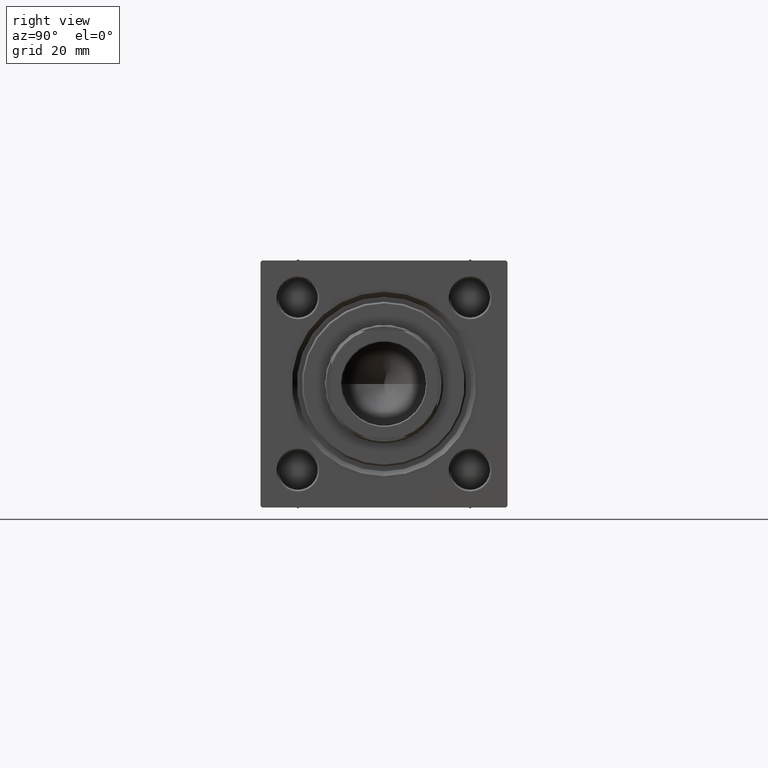
[diagram: clean part render]
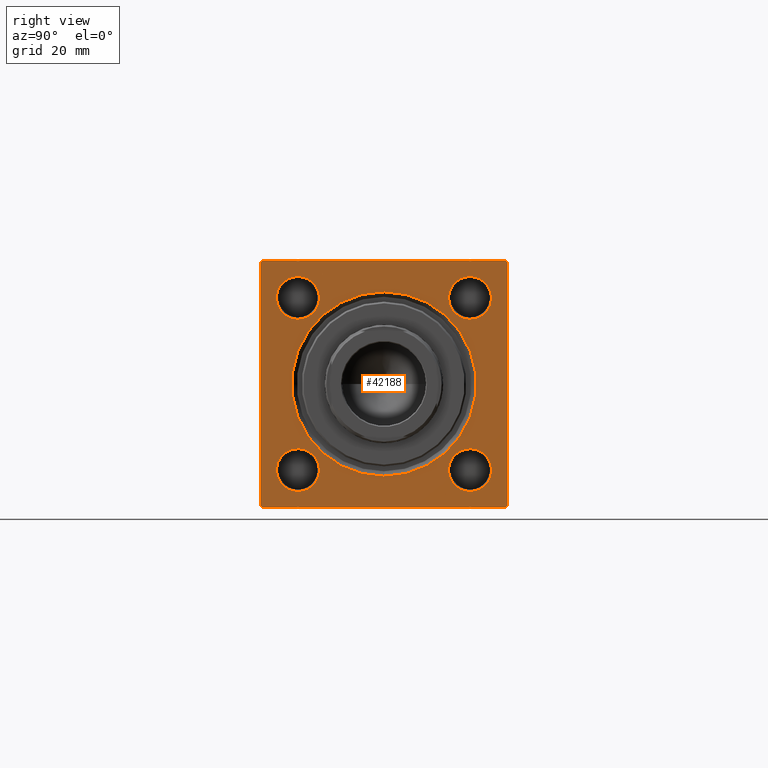
[diagram: same view with one face highlighted and labeled with its STEP entity id]
A machine part, right view. The second image highlights one B-rep face of the part: STEP entity #42188.
In plain terms, the highlighted planar face has unit normal (-1, 0, 0).
Its self-contained STEP definition (entity closure, byte-faithful):
#86 = AXIS2_PLACEMENT_3D ( 'NONE', #1827, #13035, #33537 ) ;
#119 = VERTEX_POINT ( 'NONE', #745 ) ;
#745 = CARTESIAN_POINT ( 'NONE',  ( 154.0000000000000000, 26.14999999999999858, 19.64999999999999503 ) ) ;
#986 = ORIENTED_EDGE ( 'NONE', *, *, #2854, .T. ) ;
#1223 = VERTEX_POINT ( 'NONE', #22635 ) ;
#1317 = DIRECTION ( 'NONE',  ( 0.000000000000000000, 0.000000000000000000, 1.000000000000000000 ) ) ;
#1333 = CARTESIAN_POINT ( 'NONE',  ( 154.0000000000000000, 0.000000000000000000, 0.000000000000000000 ) ) ;
#1701 = AXIS2_PLACEMENT_3D ( 'NONE', #35091, #16080, #42960 ) ;
#1739 = VERTEX_POINT ( 'NONE', #29761 ) ;
#1814 = VERTEX_POINT ( 'NONE', #48777 ) ;
#1827 = CARTESIAN_POINT ( 'NONE',  ( 154.0000000000000000, 26.14999999999999858, 26.15000000000000213 ) ) ;
#2177 = DIRECTION ( 'NONE',  ( 0.000000000000000000, 0.000000000000000000, 1.000000000000000000 ) ) ;
#2854 = EDGE_CURVE ( 'NONE', #4238, #49721, #17377, .T. ) ;
#3809 = DIRECTION ( 'NONE',  ( 0.000000000000000000, 0.000000000000000000, 1.000000000000000000 ) ) ;
#3873 = DIRECTION ( 'NONE',  ( -1.000000000000000000, -0.000000000000000000, 0.000000000000000000 ) ) ;
#3919 = ORIENTED_EDGE ( 'NONE', *, *, #16750, .T. ) ;
#4052 = EDGE_CURVE ( 'NONE', #40259, #22416, #41417, .T. ) ;
#4238 = VERTEX_POINT ( 'NONE', #41377 ) ;
#4481 = VERTEX_POINT ( 'NONE', #50075 ) ;
#4761 = EDGE_CURVE ( 'NONE', #1739, #119, #35747, .T. ) ;
#4784 = DIRECTION ( 'NONE',  ( 0.000000000000000000, -1.000000000000000000, -1.850371707708594316E-16 ) ) ;
#4812 = CARTESIAN_POINT ( 'NONE',  ( 154.0000000000000000, 37.50000000000000000, -37.50000000000000000 ) ) ;
#5258 = EDGE_CURVE ( 'NONE', #49721, #33942, #40542, .T. ) ;
#5439 = CARTESIAN_POINT ( 'NONE',  ( 154.0000000000000000, -37.50000000000000000, 37.49999999999997868 ) ) ;
#6591 = AXIS2_PLACEMENT_3D ( 'NONE', #34225, #14711, #10398 ) ;
#7886 = LINE ( 'NONE', #35520, #43536 ) ;
#8889 = EDGE_LOOP ( 'NONE', ( #15349, #49926 ) ) ;
#9632 = ORIENTED_EDGE ( 'NONE', *, *, #28681, .T. ) ;
#10398 = DIRECTION ( 'NONE',  ( 0.000000000000000000, 0.000000000000000000, 1.000000000000000000 ) ) ;
#10812 = VECTOR ( 'NONE', #36541, 1000.000000000000114 ) ;
#10848 = DIRECTION ( 'NONE',  ( -1.000000000000000000, -0.000000000000000000, 0.000000000000000000 ) ) ;
#11150 = CIRCLE ( 'NONE', #47620, 27.99999999999999645 ) ;
#11468 = CIRCLE ( 'NONE', #1701, 6.500000000000002665 ) ;
#11648 = AXIS2_PLACEMENT_3D ( 'NONE', #44604, #10848, #22285 ) ;
#12110 = ORIENTED_EDGE ( 'NONE', *, *, #4761, .T. ) ;
#13035 = DIRECTION ( 'NONE',  ( -1.000000000000000000, -0.000000000000000000, 0.000000000000000000 ) ) ;
#13043 = DIRECTION ( 'NONE',  ( -1.000000000000000000, -0.000000000000000000, 0.000000000000000000 ) ) ;
#13076 = DIRECTION ( 'NONE',  ( 0.000000000000000000, 0.000000000000000000, -1.000000000000000000 ) ) ;
#13505 = ORIENTED_EDGE ( 'NONE', *, *, #28006, .F. ) ;
#13524 = DIRECTION ( 'NONE',  ( -1.000000000000000000, -0.000000000000000000, 0.000000000000000000 ) ) ;
#13655 = CIRCLE ( 'NONE', #19316, 6.500000000000002665 ) ;
#14531 = EDGE_LOOP ( 'NONE', ( #28352, #12110 ) ) ;
#14570 = CARTESIAN_POINT ( 'NONE',  ( 154.0000000000000000, -26.15000000000000213, -32.64999999999998437 ) ) ;
#14711 = DIRECTION ( 'NONE',  ( -1.000000000000000000, -0.000000000000000000, 0.000000000000000000 ) ) ;
#14790 = ORIENTED_EDGE ( 'NONE', *, *, #23486, .T. ) ;
#14969 = FACE_BOUND ( 'NONE', #14531, .T. ) ;
#15193 = ORIENTED_EDGE ( 'NONE', *, *, #40896, .T. ) ;
#15349 = ORIENTED_EDGE ( 'NONE', *, *, #27125, .T. ) ;
#16080 = DIRECTION ( 'NONE',  ( -1.000000000000000000, -0.000000000000000000, 0.000000000000000000 ) ) ;
#16376 = EDGE_CURVE ( 'NONE', #49837, #4481, #41663, .T. ) ;
#16476 = DIRECTION ( 'NONE',  ( 0.000000000000000000, 0.7071067811865671127, -0.7071067811865279218 ) ) ;
#16750 = EDGE_CURVE ( 'NONE', #23470, #19308, #24100, .T. ) ;
#17377 = LINE ( 'NONE', #5439, #34875 ) ;
#17423 = ORIENTED_EDGE ( 'NONE', *, *, #5258, .T. ) ;
#17689 = EDGE_LOOP ( 'NONE', ( #40186, #35062 ) ) ;
#18032 = ORIENTED_EDGE ( 'NONE', *, *, #28877, .F. ) ;
#18523 = FACE_BOUND ( 'NONE', #26665, .T. ) ;
#18934 = LINE ( 'NONE', #30087, #29154 ) ;
#19032 = FACE_BOUND ( 'NONE', #41862, .T. ) ;
#19308 = VERTEX_POINT ( 'NONE', #22939 ) ;
#19316 = AXIS2_PLACEMENT_3D ( 'NONE', #22503, #41246, #2177 ) ;
#19772 = EDGE_CURVE ( 'NONE', #119, #1739, #26445, .T. ) ;
#19829 = AXIS2_PLACEMENT_3D ( 'NONE', #1333, #13043, #42725 ) ;
#20367 = DIRECTION ( 'NONE',  ( 0.000000000000000000, 0.000000000000000000, 1.000000000000000000 ) ) ;
#20695 = DIRECTION ( 'NONE',  ( 0.000000000000000000, -9.251858538542972814E-17, -1.000000000000000000 ) ) ;
#20830 = DIRECTION ( 'NONE',  ( -1.000000000000000000, -0.000000000000000000, 0.000000000000000000 ) ) ;
#21099 = LINE ( 'NONE', #40601, #10812 ) ;
#21325 = ORIENTED_EDGE ( 'NONE', *, *, #32341, .T. ) ;
#21437 = EDGE_CURVE ( 'NONE', #1814, #34853, #37782, .T. ) ;
#21673 = AXIS2_PLACEMENT_3D ( 'NONE', #31773, #39626, #20367 ) ;
#21703 = VECTOR ( 'NONE', #42372, 1000.000000000000000 ) ;
#22285 = DIRECTION ( 'NONE',  ( 0.000000000000000000, 0.000000000000000000, 1.000000000000000000 ) ) ;
#22416 = VERTEX_POINT ( 'NONE', #37377 ) ;
#22493 = DIRECTION ( 'NONE',  ( -0.000000000000000000, 0.7071067811865425767, 0.7071067811865525687 ) ) ;
#22503 = CARTESIAN_POINT ( 'NONE',  ( 154.0000000000000000, -26.14999999999999147, 26.14999999999999503 ) ) ;
#22635 = CARTESIAN_POINT ( 'NONE',  ( 154.0000000000000000, -26.14999999999999147, 19.64999999999999503 ) ) ;
#22804 = AXIS2_PLACEMENT_3D ( 'NONE', #47255, #3873, #31291 ) ;
#22939 = CARTESIAN_POINT ( 'NONE',  ( 154.0000000000000000, -36.99999999999997158, 37.49999999999997868 ) ) ;
#23136 = DIRECTION ( 'NONE',  ( -1.000000000000000000, -0.000000000000000000, 0.000000000000000000 ) ) ;
#23470 = VERTEX_POINT ( 'NONE', #47765 ) ;
#23486 = EDGE_CURVE ( 'NONE', #4481, #49837, #11150, .T. ) ;
#24100 = LINE ( 'NONE', #36486, #43361 ) ;
#24934 = CIRCLE ( 'NONE', #21673, 6.499999999999974243 ) ;
#25505 = VERTEX_POINT ( 'NONE', #25564 ) ;
#25564 = CARTESIAN_POINT ( 'NONE',  ( 154.0000000000000000, 37.50000000000000000, -36.99999999999999289 ) ) ;
#25883 = CARTESIAN_POINT ( 'NONE',  ( 154.0000000000000000, 37.00000000000000000, -37.50000000000000000 ) ) ;
#26445 = CIRCLE ( 'NONE', #45882, 6.500000000000008882 ) ;
#26665 = EDGE_LOOP ( 'NONE', ( #9632, #15193 ) ) ;
#26918 = ORIENTED_EDGE ( 'NONE', *, *, #27045, .T. ) ;
#26969 = VERTEX_POINT ( 'NONE', #30725 ) ;
#27045 = EDGE_CURVE ( 'NONE', #26969, #23470, #7886, .T. ) ;
#27125 = EDGE_CURVE ( 'NONE', #34853, #1814, #24934, .T. ) ;
#27903 = CARTESIAN_POINT ( 'NONE',  ( 154.0000000000000000, -36.99999999999998579, -37.50000000000000000 ) ) ;
#28006 = EDGE_CURVE ( 'NONE', #30071, #33942, #34764, .T. ) ;
#28058 = VERTEX_POINT ( 'NONE', #46932 ) ;
#28309 = CARTESIAN_POINT ( 'NONE',  ( 154.0000000000000000, 37.50000000000000000, 37.49999999999999289 ) ) ;
#28352 = ORIENTED_EDGE ( 'NONE', *, *, #19772, .T. ) ;
#28681 = EDGE_CURVE ( 'NONE', #1223, #28058, #13655, .T. ) ;
#28877 = EDGE_CURVE ( 'NONE', #26969, #25505, #36391, .T. ) ;
#29154 = VECTOR ( 'NONE', #22493, 999.9999999999998863 ) ;
#29761 = CARTESIAN_POINT ( 'NONE',  ( 154.0000000000000000, 26.14999999999999858, 32.65000000000001279 ) ) ;
#30071 = VERTEX_POINT ( 'NONE', #25883 ) ;
#30087 = CARTESIAN_POINT ( 'NONE',  ( 154.0000000000000000, 37.50000000000000000, -36.99999999999999289 ) ) ;
#30725 = CARTESIAN_POINT ( 'NONE',  ( 154.0000000000000000, 37.50000000000000000, 36.99999999999999289 ) ) ;
#31291 = DIRECTION ( 'NONE',  ( 0.000000000000000000, 0.000000000000000000, 1.000000000000000000 ) ) ;
#31773 = CARTESIAN_POINT ( 'NONE',  ( 154.0000000000000000, 26.14999999999999858, -26.15000000000000213 ) ) ;
#32341 = EDGE_CURVE ( 'NONE', #30071, #25505, #18934, .T. ) ;
#33508 = CIRCLE ( 'NONE', #11648, 6.499999999999974243 ) ;
#33537 = DIRECTION ( 'NONE',  ( 0.000000000000000000, 0.000000000000000000, 1.000000000000000000 ) ) ;
#33942 = VERTEX_POINT ( 'NONE', #43861 ) ;
#34225 = CARTESIAN_POINT ( 'NONE',  ( 154.0000000000000000, 0.000000000000000000, 0.000000000000000000 ) ) ;
#34764 = LINE ( 'NONE', #4812, #21703 ) ;
#34853 = VERTEX_POINT ( 'NONE', #37971 ) ;
#34875 = VECTOR ( 'NONE', #20695, 1000.000000000000000 ) ;
#35062 = ORIENTED_EDGE ( 'NONE', *, *, #47007, .T. ) ;
#35091 = CARTESIAN_POINT ( 'NONE',  ( 154.0000000000000000, -26.14999999999999147, 26.14999999999999503 ) ) ;
#35520 = CARTESIAN_POINT ( 'NONE',  ( 154.0000000000000000, 37.00000000000000000, 37.49999999999999289 ) ) ;
#35747 = CIRCLE ( 'NONE', #86, 6.500000000000008882 ) ;
#35770 = CARTESIAN_POINT ( 'NONE',  ( 154.0000000000000000, 26.14999999999999858, 26.15000000000000213 ) ) ;
#36391 = LINE ( 'NONE', #28309, #46849 ) ;
#36486 = CARTESIAN_POINT ( 'NONE',  ( 154.0000000000000000, 37.50000000000000000, 37.49999999999999289 ) ) ;
#36541 = DIRECTION ( 'NONE',  ( -0.000000000000000000, -0.7071067811865474617, -0.7071067811865474617 ) ) ;
#36587 = CARTESIAN_POINT ( 'NONE',  ( 154.0000000000000000, 0.000000000000000000, 0.000000000000000000 ) ) ;
#37377 = CARTESIAN_POINT ( 'NONE',  ( 154.0000000000000000, -26.15000000000000213, -19.65000000000002345 ) ) ;
#37782 = CIRCLE ( 'NONE', #44290, 6.499999999999974243 ) ;
#37971 = CARTESIAN_POINT ( 'NONE',  ( 154.0000000000000000, 26.14999999999999858, -32.64999999999998437 ) ) ;
#38540 = PLANE ( 'NONE',  #6591 ) ;
#39200 = CARTESIAN_POINT ( 'NONE',  ( 154.0000000000000000, -37.50000000000000711, -37.00000000000000711 ) ) ;
#39626 = DIRECTION ( 'NONE',  ( -1.000000000000000000, -0.000000000000000000, 0.000000000000000000 ) ) ;
#39810 = VECTOR ( 'NONE', #16476, 1000.000000000000000 ) ;
#40186 = ORIENTED_EDGE ( 'NONE', *, *, #4052, .T. ) ;
#40259 = VERTEX_POINT ( 'NONE', #14570 ) ;
#40542 = LINE ( 'NONE', #27903, #39810 ) ;
#40578 = DIRECTION ( 'NONE',  ( 0.000000000000000000, 0.000000000000000000, 1.000000000000000000 ) ) ;
#40601 = CARTESIAN_POINT ( 'NONE',  ( 154.0000000000000000, -37.50000000000000000, 36.99999999999995026 ) ) ;
#40896 = EDGE_CURVE ( 'NONE', #28058, #1223, #11468, .T. ) ;
#41246 = DIRECTION ( 'NONE',  ( -1.000000000000000000, -0.000000000000000000, 0.000000000000000000 ) ) ;
#41377 = CARTESIAN_POINT ( 'NONE',  ( 154.0000000000000000, -37.50000000000000000, 36.99999999999995026 ) ) ;
#41417 = CIRCLE ( 'NONE', #22804, 6.499999999999974243 ) ;
#41663 = CIRCLE ( 'NONE', #19829, 27.99999999999999645 ) ;
#41862 = EDGE_LOOP ( 'NONE', ( #43830, #14790 ) ) ;
#42188 = ADVANCED_FACE ( 'NONE', ( #14969, #18523, #45652, #49200, #19032, #49448 ), #38540, .F. ) ;
#42372 = DIRECTION ( 'NONE',  ( 0.000000000000000000, -1.000000000000000000, 0.000000000000000000 ) ) ;
#42374 = CARTESIAN_POINT ( 'NONE',  ( 154.0000000000000000, 26.14999999999999858, -26.15000000000000213 ) ) ;
#42725 = DIRECTION ( 'NONE',  ( 0.000000000000000000, 0.000000000000000000, 1.000000000000000000 ) ) ;
#42960 = DIRECTION ( 'NONE',  ( 0.000000000000000000, 0.000000000000000000, 1.000000000000000000 ) ) ;
#43361 = VECTOR ( 'NONE', #4784, 1000.000000000000000 ) ;
#43536 = VECTOR ( 'NONE', #49998, 1000.000000000000114 ) ;
#43830 = ORIENTED_EDGE ( 'NONE', *, *, #16376, .T. ) ;
#43861 = CARTESIAN_POINT ( 'NONE',  ( 154.0000000000000000, -36.99999999999998579, -37.50000000000000000 ) ) ;
#44290 = AXIS2_PLACEMENT_3D ( 'NONE', #42374, #23136, #3809 ) ;
#44604 = CARTESIAN_POINT ( 'NONE',  ( 154.0000000000000000, -26.15000000000000213, -26.15000000000000213 ) ) ;
#45652 = FACE_BOUND ( 'NONE', #17689, .T. ) ;
#45882 = AXIS2_PLACEMENT_3D ( 'NONE', #35770, #20830, #40578 ) ;
#46774 = EDGE_CURVE ( 'NONE', #19308, #4238, #21099, .T. ) ;
#46849 = VECTOR ( 'NONE', #13076, 1000.000000000000000 ) ;
#46932 = CARTESIAN_POINT ( 'NONE',  ( 154.0000000000000000, -26.14999999999999147, 32.64999999999999858 ) ) ;
#47007 = EDGE_CURVE ( 'NONE', #22416, #40259, #33508, .T. ) ;
#47255 = CARTESIAN_POINT ( 'NONE',  ( 154.0000000000000000, -26.15000000000000213, -26.15000000000000213 ) ) ;
#47620 = AXIS2_PLACEMENT_3D ( 'NONE', #36587, #13524, #1317 ) ;
#47765 = CARTESIAN_POINT ( 'NONE',  ( 154.0000000000000000, 37.00000000000000000, 37.49999999999999289 ) ) ;
#48547 = CARTESIAN_POINT ( 'NONE',  ( 154.0000000000000000, 0.000000000000000000, -27.99999999999999645 ) ) ;
#48777 = CARTESIAN_POINT ( 'NONE',  ( 154.0000000000000000, 26.14999999999999858, -19.65000000000002345 ) ) ;
#49200 = FACE_BOUND ( 'NONE', #8889, .T. ) ;
#49264 = EDGE_LOOP ( 'NONE', ( #986, #17423, #13505, #21325, #18032, #26918, #3919, #49358 ) ) ;
#49358 = ORIENTED_EDGE ( 'NONE', *, *, #46774, .T. ) ;
#49448 = FACE_OUTER_BOUND ( 'NONE', #49264, .T. ) ;
#49721 = VERTEX_POINT ( 'NONE', #39200 ) ;
#49837 = VERTEX_POINT ( 'NONE', #48547 ) ;
#49926 = ORIENTED_EDGE ( 'NONE', *, *, #21437, .T. ) ;
#49998 = DIRECTION ( 'NONE',  ( 0.000000000000000000, -0.7071067811865474617, 0.7071067811865474617 ) ) ;
#50075 = CARTESIAN_POINT ( 'NONE',  ( 154.0000000000000000, 3.429011037612588881E-15, 27.99999999999999645 ) ) ;